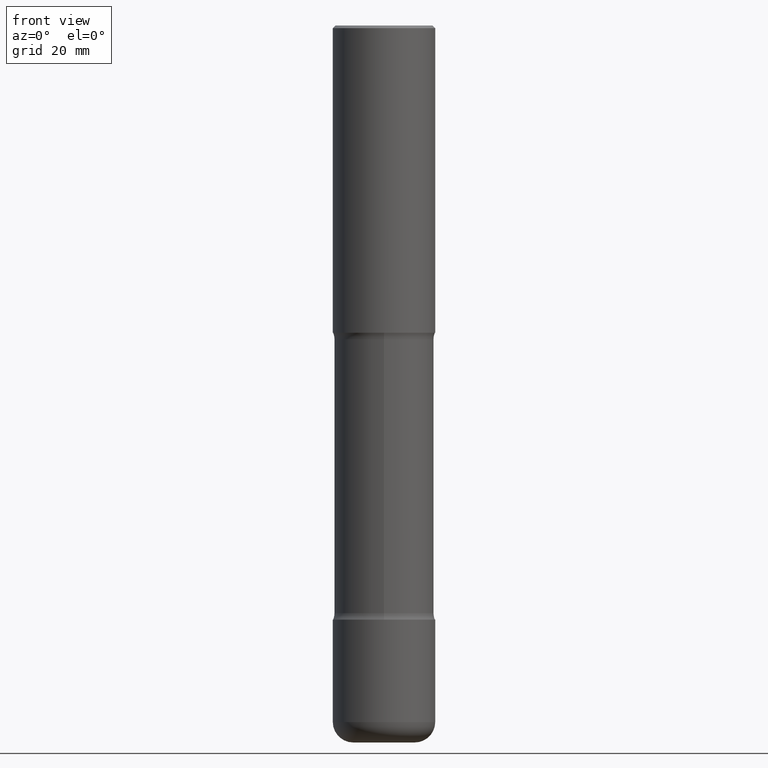
[diagram: clean part render]
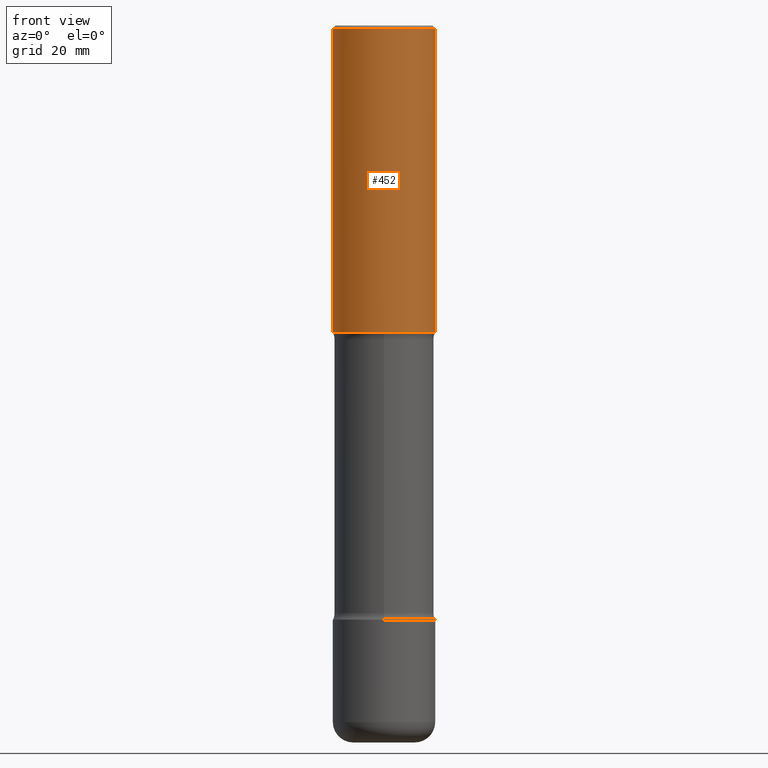
[diagram: same view with one face highlighted and labeled with its STEP entity id]
A machine part, front view. The second image highlights one B-rep face of the part: STEP entity #452.
In plain terms, the highlighted cylindrical surface (partial cylindrical patch) has radius 10 mm, axis along (-0, 0, 1).
Its self-contained STEP definition (entity closure, byte-faithful):
#16 = VERTEX_POINT ( 'NONE', #489 ) ;
#33 = CARTESIAN_POINT ( 'NONE',  ( -0.3937000000000001054, 2.797406750687515181E-15, -1.936584745033357016E-29 ) ) ;
#37 = CYLINDRICAL_SURFACE ( 'NONE', #86, 0.3937000000000001054 ) ;
#38 = VERTEX_POINT ( 'NONE', #317 ) ;
#47 = VECTOR ( 'NONE', #191, 39.37007874015748143 ) ;
#62 = DIRECTION ( 'NONE',  ( 1.000000000000000000, -6.982962677686266711E-15, 4.876176775795935793E-29 ) ) ;
#76 = CARTESIAN_POINT ( 'NONE',  ( 0.3937000000000000499, -2.770807688499515734E-15, -0.02000000000000008715 ) ) ;
#86 = AXIS2_PLACEMENT_3D ( 'NONE', #448, #179, #62 ) ;
#93 = CARTESIAN_POINT ( 'NONE',  ( 0.3937000000000001054, -2.749192406205084005E-15, 1.919750796630860452E-29 ) ) ;
#95 = DIRECTION ( 'NONE',  ( -2.445468806185136597E-29, 3.491481338843145583E-15, 1.000000000000000000 ) ) ;
#122 = ORIENTED_EDGE ( 'NONE', *, *, #187, .F. ) ;
#148 = VERTEX_POINT ( 'NONE', #76 ) ;
#151 = AXIS2_PLACEMENT_3D ( 'NONE', #246, #349, #428 ) ;
#157 = EDGE_CURVE ( 'NONE', #38, #405, #195, .T. ) ;
#179 = DIRECTION ( 'NONE',  ( -2.445468806185136597E-29, 3.491481338843145583E-15, 1.000000000000000000 ) ) ;
#185 = CARTESIAN_POINT ( 'NONE',  ( 5.776686413970530874E-29, -8.247577218615279626E-15, -2.362200000000000077 ) ) ;
#187 = EDGE_CURVE ( 'NONE', #405, #148, #468, .T. ) ;
#191 = DIRECTION ( 'NONE',  ( -2.445468806185136877E-29, 3.491481338843145188E-15, 1.000000000000000000 ) ) ;
#195 = LINE ( 'NONE', #33, #247 ) ;
#243 = DIRECTION ( 'NONE',  ( -2.445468806185136877E-29, 3.491481338843145188E-15, 1.000000000000000000 ) ) ;
#245 = FACE_OUTER_BOUND ( 'NONE', #262, .T. ) ;
#246 = CARTESIAN_POINT ( 'NONE',  ( 4.890937612370294178E-31, -6.982962677686321191E-17, -0.02000000000000008715 ) ) ;
#247 = VECTOR ( 'NONE', #243, 39.37007874015748143 ) ;
#262 = EDGE_LOOP ( 'NONE', ( #469, #335, #337, #122 ) ) ;
#272 = DIRECTION ( 'NONE',  ( 1.000000000000000000, -6.982962677686266711E-15, 0.000000000000000000 ) ) ;
#317 = CARTESIAN_POINT ( 'NONE',  ( -0.3937000000000002720, -1.361296672008554112E-15, -2.362200000000000077 ) ) ;
#329 = AXIS2_PLACEMENT_3D ( 'NONE', #185, #95, #272 ) ;
#335 = ORIENTED_EDGE ( 'NONE', *, *, #415, .T. ) ;
#337 = ORIENTED_EDGE ( 'NONE', *, *, #459, .T. ) ;
#349 = DIRECTION ( 'NONE',  ( -2.445468806185136597E-29, 3.491481338843145583E-15, 1.000000000000000000 ) ) ;
#356 = CARTESIAN_POINT ( 'NONE',  ( -0.3937000000000000499, 2.679362779428219918E-15, -0.02000000000000008715 ) ) ;
#370 = CIRCLE ( 'NONE', #329, 0.3937000000000002164 ) ;
#405 = VERTEX_POINT ( 'NONE', #356 ) ;
#415 = EDGE_CURVE ( 'NONE', #38, #16, #370, .T. ) ;
#428 = DIRECTION ( 'NONE',  ( 1.000000000000000000, -6.982962677686265922E-15, 0.000000000000000000 ) ) ;
#448 = CARTESIAN_POINT ( 'NONE',  ( 0.000000000000000000, 0.000000000000000000, 0.000000000000000000 ) ) ;
#452 = ADVANCED_FACE ( 'NONE', ( #245 ), #37, .T. ) ;
#459 = EDGE_CURVE ( 'NONE', #16, #148, #492, .T. ) ;
#468 = CIRCLE ( 'NONE', #151, 0.3937000000000000499 ) ;
#469 = ORIENTED_EDGE ( 'NONE', *, *, #157, .F. ) ;
#489 = CARTESIAN_POINT ( 'NONE',  ( 0.3937000000000002164, -1.099676962482036442E-14, -2.362200000000000077 ) ) ;
#492 = LINE ( 'NONE', #93, #47 ) ;